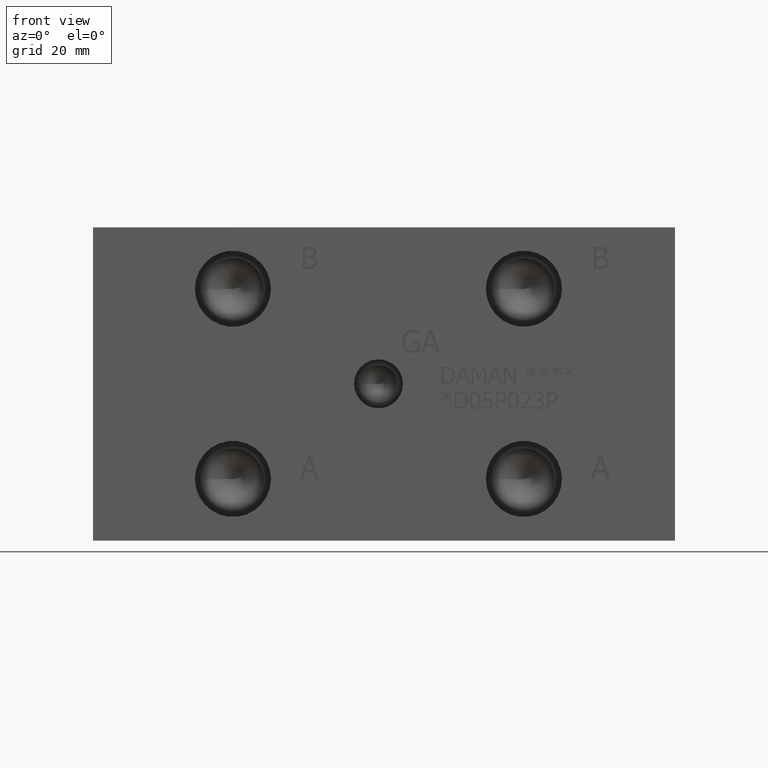
[diagram: clean part render]
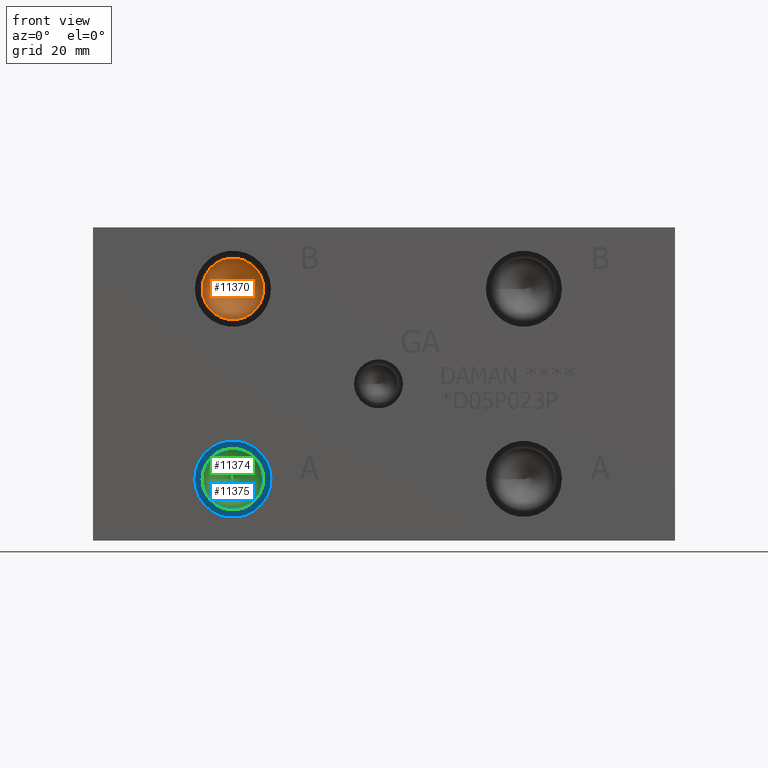
[diagram: same view with three faces highlighted in distinct colors, each labeled with its STEP entity id]
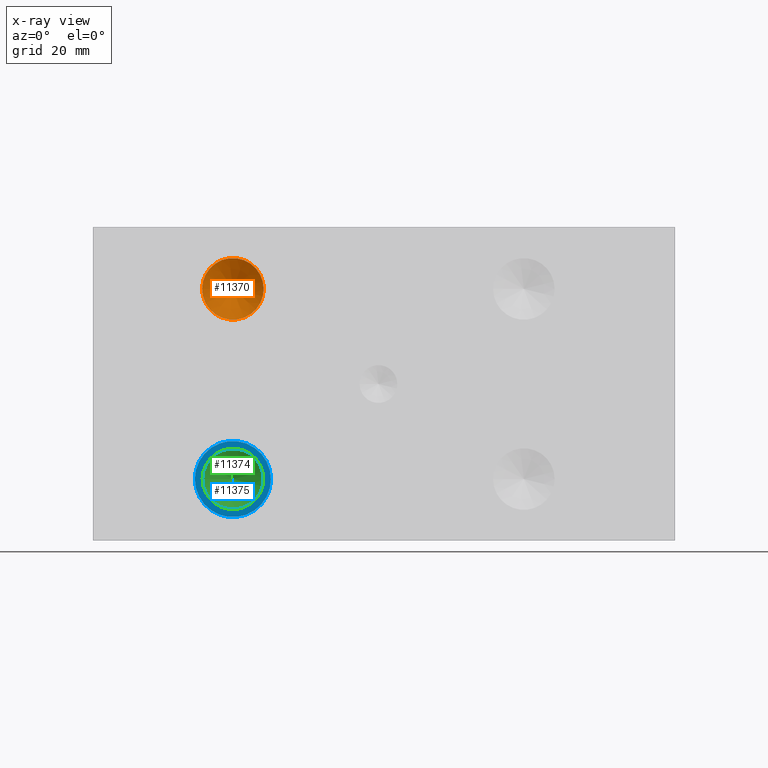
[diagram: x-ray of the same camera — body ghosted, the three highlighted faces saturated]
A machine part, front view with three faces highlighted in distinct colors.
The next image is the same camera in x-ray (body ghosted, the three faces saturated) — at least one of them is partly hidden behind the body in this view.
Their STEP definitions:

[orange] entity #11370 — the highlighted conical surface has half-angle 60 deg.
#74=CONICAL_SURFACE('',#11887,4.3688,1.0471975511966);
#169=CIRCLE('',#11888,8.7376);
#170=CIRCLE('',#11889,8.7376);
#1356=FACE_OUTER_BOUND('',#2008,.T.);
#2008=EDGE_LOOP('',(#9699,#9700,#9701,#9702));
#3126=LINE('',#19286,#4202);
#4202=VECTOR('',#13961,4.3688);
#5213=VERTEX_POINT('',#19282);
#5214=VERTEX_POINT('',#19283);
#5215=VERTEX_POINT('',#19285);
#6750=EDGE_CURVE('',#5213,#5214,#169,.T.);
#6751=EDGE_CURVE('',#5214,#5215,#3126,.T.);
#6752=EDGE_CURVE('',#5214,#5213,#170,.T.);
#9699=ORIENTED_EDGE('',*,*,#6750,.T.);
#9700=ORIENTED_EDGE('',*,*,#6751,.T.);
#9701=ORIENTED_EDGE('',*,*,#6751,.F.);
#9702=ORIENTED_EDGE('',*,*,#6752,.T.);
#11370=ADVANCED_FACE('',(#1356),#74,.F.);
#11887=AXIS2_PLACEMENT_3D('',#19281,#13957,#13958);
#11888=AXIS2_PLACEMENT_3D('',#19284,#13959,#13960);
#11889=AXIS2_PLACEMENT_3D('',#19287,#13962,#13963);
#13957=DIRECTION('center_axis',(0.,-1.,0.));
#13958=DIRECTION('ref_axis',(1.,0.,0.));
#13959=DIRECTION('center_axis',(0.,-1.,0.));
#13960=DIRECTION('ref_axis',(1.,0.,0.));
#13961=DIRECTION('',(0.866025403784439,0.5,1.06057523872491E-16));
#13962=DIRECTION('center_axis',(0.,-1.,0.));
#13963=DIRECTION('ref_axis',(1.,0.,0.));
#19281=CARTESIAN_POINT('Origin',(39.6748,18.3937978560356,71.4248));
#19282=CARTESIAN_POINT('',(48.4124,15.87147,71.4248));
#19283=CARTESIAN_POINT('',(30.9372,15.87147,71.4248));
#19284=CARTESIAN_POINT('Origin',(39.6748,15.87147,71.4248));
#19285=CARTESIAN_POINT('',(39.6748,20.9161257120713,71.4248));
#19286=CARTESIAN_POINT('',(35.306,18.3937978560356,71.4248));
#19287=CARTESIAN_POINT('Origin',(39.6748,15.87147,71.4248));

[blue] entity #11375 — the highlighted planar face has unit normal (0, -1, 0).
#176=CIRCLE('',#11900,10.795);
#177=CIRCLE('',#11901,10.795);
#178=CIRCLE('',#11902,8.7376);
#812=FACE_BOUND('',#2015,.T.);
#1361=FACE_OUTER_BOUND('',#2014,.T.);
#2014=EDGE_LOOP('',(#9721,#9722));
#2015=EDGE_LOOP('',(#9723));
#5222=VERTEX_POINT('',#19307);
#5223=VERTEX_POINT('',#19308);
#5224=VERTEX_POINT('',#19311);
#6761=EDGE_CURVE('',#5222,#5223,#176,.T.);
#6762=EDGE_CURVE('',#5223,#5222,#177,.T.);
#6763=EDGE_CURVE('',#5224,#5224,#178,.T.);
#9721=ORIENTED_EDGE('',*,*,#6761,.T.);
#9722=ORIENTED_EDGE('',*,*,#6762,.T.);
#9723=ORIENTED_EDGE('',*,*,#6763,.F.);
#10374=PLANE('',#11899);
#11375=ADVANCED_FACE('',(#1361,#812),#10374,.T.);
#11899=AXIS2_PLACEMENT_3D('',#19306,#13985,#13986);
#11900=AXIS2_PLACEMENT_3D('',#19309,#13987,#13988);
#11901=AXIS2_PLACEMENT_3D('',#19310,#13989,#13990);
#11902=AXIS2_PLACEMENT_3D('',#19312,#13991,#13992);
#13985=DIRECTION('center_axis',(0.,-1.,0.));
#13986=DIRECTION('ref_axis',(1.,0.,0.));
#13987=DIRECTION('center_axis',(0.,-1.,0.));
#13988=DIRECTION('ref_axis',(1.,0.,0.));
#13989=DIRECTION('center_axis',(0.,-1.,0.));
#13990=DIRECTION('ref_axis',(1.,0.,0.));
#13991=DIRECTION('center_axis',(0.,-1.,0.));
#13992=DIRECTION('ref_axis',(1.,0.,0.));
#19306=CARTESIAN_POINT('Origin',(39.6748,15.367,17.4752));
#19307=CARTESIAN_POINT('',(50.4698,15.367,17.4752));
#19308=CARTESIAN_POINT('',(28.8798,15.367,17.4752));
#19309=CARTESIAN_POINT('Origin',(39.6748,15.367,17.4752));
#19310=CARTESIAN_POINT('Origin',(39.6748,15.367,17.4752));
#19311=CARTESIAN_POINT('',(30.9372,15.367,17.4752));
#19312=CARTESIAN_POINT('Origin',(39.6748,15.367,17.4752));

[green] entity #11374 — the highlighted conical surface has half-angle 60 deg.
#75=CONICAL_SURFACE('',#11896,4.3688,1.0471975511966);
#174=CIRCLE('',#11897,8.7376);
#175=CIRCLE('',#11898,8.7376);
#1360=FACE_OUTER_BOUND('',#2013,.T.);
#2013=EDGE_LOOP('',(#9717,#9718,#9719,#9720));
#3129=LINE('',#19304,#4205);
#4205=VECTOR('',#13982,4.3688);
#5219=VERTEX_POINT('',#19300);
#5220=VERTEX_POINT('',#19301);
#5221=VERTEX_POINT('',#19303);
#6758=EDGE_CURVE('',#5219,#5220,#174,.T.);
#6759=EDGE_CURVE('',#5220,#5221,#3129,.T.);
#6760=EDGE_CURVE('',#5220,#5219,#175,.T.);
#9717=ORIENTED_EDGE('',*,*,#6758,.T.);
#9718=ORIENTED_EDGE('',*,*,#6759,.T.);
#9719=ORIENTED_EDGE('',*,*,#6759,.F.);
#9720=ORIENTED_EDGE('',*,*,#6760,.T.);
#11374=ADVANCED_FACE('',(#1360),#75,.F.);
#11896=AXIS2_PLACEMENT_3D('',#19299,#13978,#13979);
#11897=AXIS2_PLACEMENT_3D('',#19302,#13980,#13981);
#11898=AXIS2_PLACEMENT_3D('',#19305,#13983,#13984);
#13978=DIRECTION('center_axis',(0.,-1.,0.));
#13979=DIRECTION('ref_axis',(1.,0.,0.));
#13980=DIRECTION('center_axis',(0.,-1.,0.));
#13981=DIRECTION('ref_axis',(1.,0.,0.));
#13982=DIRECTION('',(0.866025403784439,0.5,1.06057523872491E-16));
#13983=DIRECTION('center_axis',(0.,-1.,0.));
#13984=DIRECTION('ref_axis',(1.,0.,0.));
#19299=CARTESIAN_POINT('Origin',(39.6748,18.3937978560356,17.4752));
#19300=CARTESIAN_POINT('',(48.4124,15.87147,17.4752));
#19301=CARTESIAN_POINT('',(30.9372,15.87147,17.4752));
#19302=CARTESIAN_POINT('Origin',(39.6748,15.87147,17.4752));
#19303=CARTESIAN_POINT('',(39.6748,20.9161257120713,17.4752));
#19304=CARTESIAN_POINT('',(35.306,18.3937978560356,17.4752));
#19305=CARTESIAN_POINT('Origin',(39.6748,15.87147,17.4752));